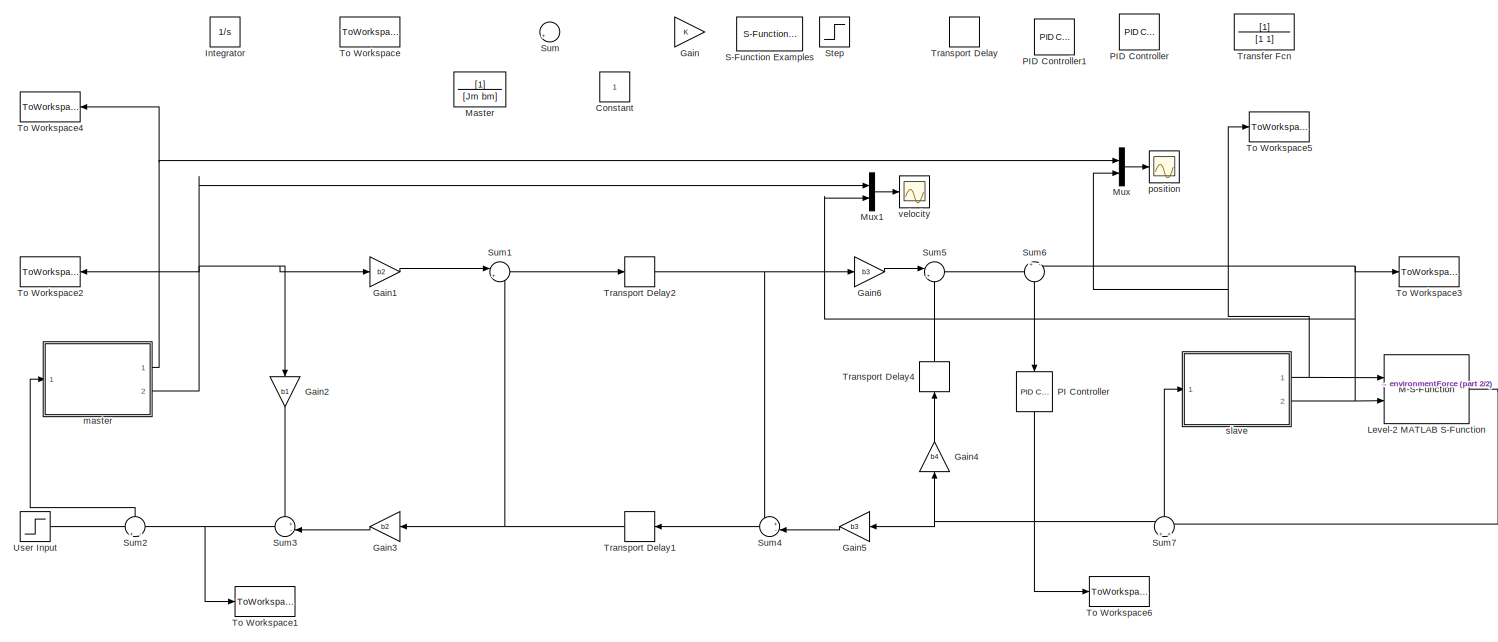
[diagram: root canvas - part 1/2, most of the canvas]
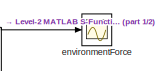
[diagram: root canvas - part 2/2, middle right region]
MODEL slx_5fdbe1e7e494
KIND model
CONFIG AbsTol = auto
CONFIG FixedStep = auto
CONFIG MaxStep = auto
CONFIG MinStep = auto
CONFIG RelTol = 1e-3
CONFIG SampleTimeConstraint = Unconstrained
CONFIG Solver = VariableStepAuto
CONFIG SolverMode = Auto
CONFIG SolverName = VariableStepAuto
CONFIG StartTime = 0.0
CONFIG StopTime = 10.0
BLOCK [Constant] Constant
BLOCK [Gain] Gain
  OutDataTypeStr = Inherit: Inherit via internal rule
  ParamDataTypeStr = Inherit: Inherit via internal rule
  SaturateOnIntegerOverflow = off
BLOCK [Gain] Gain1
  Gain = b2
  OutDataTypeStr = Inherit: Inherit via internal rule
  ParamDataTypeStr = Inherit: Inherit via internal rule
  SaturateOnIntegerOverflow = off
BLOCK [Gain] Gain2
  Gain = b1
  OutDataTypeStr = Inherit: Inherit via internal rule
  ParamDataTypeStr = Inherit: Inherit via internal rule
  SaturateOnIntegerOverflow = off
BLOCK [Gain] Gain3
  Gain = b2
  OutDataTypeStr = Inherit: Inherit via internal rule
  ParamDataTypeStr = Inherit: Inherit via internal rule
  SaturateOnIntegerOverflow = off
BLOCK [Gain] Gain4
  Gain = b4
  OutDataTypeStr = Inherit: Inherit via internal rule
  ParamDataTypeStr = Inherit: Inherit via internal rule
  SaturateOnIntegerOverflow = off
BLOCK [Gain] Gain5
  Gain = b3
  OutDataTypeStr = Inherit: Inherit via internal rule
  ParamDataTypeStr = Inherit: Inherit via internal rule
  SaturateOnIntegerOverflow = off
BLOCK [Gain] Gain6
  Gain = b3
  OutDataTypeStr = Inherit: Inherit via internal rule
  ParamDataTypeStr = Inherit: Inherit via internal rule
  SaturateOnIntegerOverflow = off
BLOCK [Integrator] Integrator
  Ports = [1, 1]
BLOCK [M-S-Function] Level-2 MATLAB S-Function
  FunctionName = wall
  Parameters = Kwall, bwall, xwall
  Ports = [2, 1]
BLOCK [TransferFcn] Master
  Denominator = [Jm bm]
BLOCK [Mux] Mux
  DisplayOption = bar
  Inputs = 2
  Ports = [2, 1]
BLOCK [Mux] Mux1
  DisplayOption = bar
  Inputs = 2
  Ports = [2, 1]
BLOCK [Reference] PI Controller  REF=simulink/Continuous/PID Controller
  Ports = [1, 1]
  SourceBlock = simulink/Continuous/PID Controller
  SourceType = PID 1dof
BLOCK [Reference] PID Controller  REF=simulink/Continuous/PID Controller
  Ports = [1, 1]
  SourceBlock = simulink/Continuous/PID Controller
  SourceType = PID 1dof
BLOCK [Reference] PID Controller1  REF=simulink/Continuous/PID Controller
  Ports = [1, 1]
  SourceBlock = simulink/Continuous/PID Controller
  SourceType = PID 1dof
BLOCK [Reference] S-Function Examples  REF=simulink/User-Defined
Functions/S-Function Examples
  Ports = []
  SourceBlock = simulink/User-Defined\nFunctions/S-Function Examples
  SourceType = S-Function Examples
BLOCK [Step] Step
  SampleTime = 0
BLOCK [Sum] Sum
  IconShape = round
  InputSameDT = off
  Inputs = |++
  OutDataTypeStr = Inherit: Inherit via internal rule
  Ports = [2, 1]
  SaturateOnIntegerOverflow = off
BLOCK [Sum] Sum1
  IconShape = round
  InputSameDT = off
  Inputs = |+-
  OutDataTypeStr = Inherit: Inherit via internal rule
  Ports = [2, 1]
  SaturateOnIntegerOverflow = off
BLOCK [Sum] Sum2
  IconShape = round
  InputSameDT = off
  Inputs = +|-
  OutDataTypeStr = Inherit: Inherit via internal rule
  Ports = [2, 1]
  SaturateOnIntegerOverflow = off
BLOCK [Sum] Sum3
  IconShape = round
  InputSameDT = off
  Inputs = +-|
  OutDataTypeStr = Inherit: Inherit via internal rule
  Ports = [2, 1]
  SaturateOnIntegerOverflow = off
BLOCK [Sum] Sum4
  IconShape = round
  InputSameDT = off
  Inputs = +-|
  OutDataTypeStr = Inherit: Inherit via internal rule
  Ports = [2, 1]
  SaturateOnIntegerOverflow = off
BLOCK [Sum] Sum5
  IconShape = round
  InputSameDT = off
  Inputs = |+-
  OutDataTypeStr = Inherit: Inherit via internal rule
  Ports = [2, 1]
  SaturateOnIntegerOverflow = off
BLOCK [Sum] Sum6
  IconShape = round
  InputSameDT = off
  Inputs = +|-
  OutDataTypeStr = Inherit: Inherit via internal rule
  Ports = [2, 1]
  SaturateOnIntegerOverflow = off
BLOCK [Sum] Sum7
  IconShape = round
  InputSameDT = off
  Inputs = +|+
  OutDataTypeStr = Inherit: Inherit via internal rule
  Ports = [2, 1]
  SaturateOnIntegerOverflow = off
BLOCK [ToWorkspace] To Workspace
  FixptAsFi = on
  MaxDataPoints = inf
  Ports = [1]
  SampleTime = -1
  Save2DSignal = 3-D array (concatenate along third dimension)
  SaveFormat = Timeseries
  VariableName = simout
BLOCK [ToWorkspace] To Workspace1
  FixptAsFi = on
  MaxDataPoints = inf
  Ports = [1]
  SampleTime = -1
  Save2DSignal = 3-D array (concatenate along third dimension)
  SaveFormat = Timeseries
  VariableName = mas_force
BLOCK [ToWorkspace] To Workspace2
  FixptAsFi = on
  MaxDataPoints = inf
  Ports = [1]
  SampleTime = -1
  Save2DSignal = 3-D array (concatenate along third dimension)
  SaveFormat = Timeseries
  VariableName = xdot_m
BLOCK [ToWorkspace] To Workspace3
  FixptAsFi = on
  MaxDataPoints = inf
  Ports = [1]
  SampleTime = -1
  Save2DSignal = 3-D array (concatenate along third dimension)
  SaveFormat = Timeseries
  VariableName = xdot_s
BLOCK [ToWorkspace] To Workspace4
  FixptAsFi = on
  MaxDataPoints = inf
  Ports = [1]
  SampleTime = -1
  Save2DSignal = 3-D array (concatenate along third dimension)
  SaveFormat = Timeseries
  VariableName = x_m
BLOCK [ToWorkspace] To Workspace5
  FixptAsFi = on
  MaxDataPoints = inf
  Ports = [1]
  SampleTime = -1
  Save2DSignal = 3-D array (concatenate along third dimension)
  SaveFormat = Timeseries
  VariableName = x_s
BLOCK [ToWorkspace] To Workspace6
  FixptAsFi = on
  MaxDataPoints = inf
  Ports = [1]
  SampleTime = -1
  Save2DSignal = 3-D array (concatenate along third dimension)
  SaveFormat = Timeseries
  VariableName = sla_force
BLOCK [TransferFcn] Transfer Fcn
  Denominator = [1 1]
BLOCK [TransportDelay] Transport Delay
  Ports = [1, 1]
BLOCK [TransportDelay] Transport Delay1
  DelayTime = Td
  Ports = [1, 1]
BLOCK [TransportDelay] Transport Delay2
  DelayTime = Td
  Ports = [1, 1]
BLOCK [TransportDelay] Transport Delay4
  DelayTime = 0.001
  Ports = [1, 1]
BLOCK [Step] User Input
  SampleTime = 0
BLOCK [Scope] environmentForce
  Ports = [1]
  ScopeSpecificationString = Simulink.scopes.TimeScopeBlockCfg('CurrentConfiguration', extmgr.ConfigurationSet(extmgr.Configuration('Core','General UI',true),extmgr.Configuration('Core','Source UI',true),extmgr.Configuration('Sources','WiredSimulink',true,'DataLoggingVariableName','ScopeData2'),extmgr.Configuration('Visuals','Time Domain',true,'SerializedDisplays',{struct('MinYLimReal','-32.90876','MaxYLimReal','3.65653','YLa...<+1415ch>
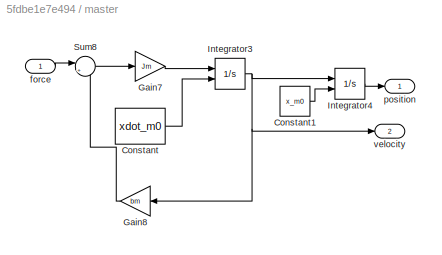
BLOCK [SubSystem] master 
  Ports = [1, 2]
  RequestExecContextInheritance = off
  Variant = off
BLOCK [Constant] master /Constant
  Value = xdot_m0
BLOCK [Constant] master /Constant1
  Value = x_m0
BLOCK [Gain] master /Gain7
  Gain = Jm
  OutDataTypeStr = Inherit: Inherit via internal rule
  ParamDataTypeStr = Inherit: Inherit via internal rule
  SaturateOnIntegerOverflow = off
BLOCK [Gain] master /Gain8
  Gain = bm
  OutDataTypeStr = Inherit: Inherit via internal rule
  ParamDataTypeStr = Inherit: Inherit via internal rule
  SaturateOnIntegerOverflow = off
BLOCK [Integrator] master /Integrator3
  InitialConditionSource = external
  Ports = [2, 1]
BLOCK [Integrator] master /Integrator4
  InitialConditionSource = external
  Ports = [2, 1]
BLOCK [Sum] master /Sum8
  IconShape = round
  InputSameDT = off
  Inputs = |+-
  OutDataTypeStr = Inherit: Inherit via internal rule
  Ports = [2, 1]
  SaturateOnIntegerOverflow = off
BLOCK [Inport] master /force
  IconDisplay = Port number
BLOCK [Outport] master /position 
  IconDisplay = Port number
BLOCK [Outport] master /velocity
  IconDisplay = Port number
  Port = 2
BLOCK [Scope] position
  Ports = [1]
  ScopeSpecificationString = Simulink.scopes.TimeScopeBlockCfg('CurrentConfiguration', extmgr.ConfigurationSet(extmgr.Configuration('Core','General UI',true),extmgr.Configuration('Core','Source UI',true),extmgr.Configuration('Sources','WiredSimulink',true),extmgr.Configuration('Visuals','Time Domain',true,'SerializedDisplays',{struct('MinYLimReal','-0.02806','MaxYLimReal','0.2525','YLabelReal','','MinYLimMag','0.00000','MaxYL...<+1363ch>
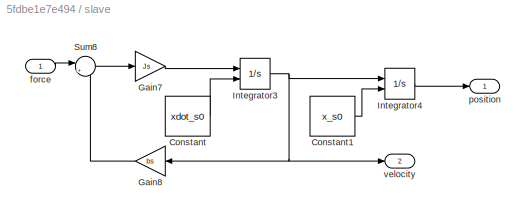
BLOCK [SubSystem] slave 
  Ports = [1, 2]
  RequestExecContextInheritance = off
  Variant = off
BLOCK [Constant] slave /Constant
  Value = xdot_s0
BLOCK [Constant] slave /Constant1
  Value = x_s0
BLOCK [Gain] slave /Gain7
  Gain = Js
  OutDataTypeStr = Inherit: Inherit via internal rule
  ParamDataTypeStr = Inherit: Inherit via internal rule
  SaturateOnIntegerOverflow = off
BLOCK [Gain] slave /Gain8
  Gain = bs
  OutDataTypeStr = Inherit: Inherit via internal rule
  ParamDataTypeStr = Inherit: Inherit via internal rule
  SaturateOnIntegerOverflow = off
BLOCK [Integrator] slave /Integrator3
  InitialConditionSource = external
  Ports = [2, 1]
BLOCK [Integrator] slave /Integrator4
  InitialConditionSource = external
  Ports = [2, 1]
BLOCK [Sum] slave /Sum8
  IconShape = round
  InputSameDT = off
  Inputs = |+-
  OutDataTypeStr = Inherit: Inherit via internal rule
  Ports = [2, 1]
  SaturateOnIntegerOverflow = off
BLOCK [Inport] slave /force
  IconDisplay = Port number
BLOCK [Outport] slave /position 
  IconDisplay = Port number
BLOCK [Outport] slave /velocity
  IconDisplay = Port number
  Port = 2
BLOCK [Scope] velocity
  Ports = [1]
  ScopeSpecificationString = Simulink.scopes.TimeScopeBlockCfg('CurrentConfiguration', extmgr.ConfigurationSet(extmgr.Configuration('Core','General UI',true),extmgr.Configuration('Core','Source UI',true),extmgr.Configuration('Sources','WiredSimulink',true,'DataLoggingVariableName','ScopeData1'),extmgr.Configuration('Visuals','Time Domain',true,'SerializedDisplays',{struct('MinYLimReal','-0.35371','MaxYLimReal','0.5311','YLabe...<+1402ch>
LINE Gain1:1 -> Sum1:1
LINE Gain2:1 -> Sum3:1
LINE Gain3:1 -> Sum3:2
LINE Gain4:1 -> Transport Delay4:1
LINE Gain5:1 -> Sum4:2
LINE Gain6:1 -> Sum5:1
NET Level-2 MATLAB S-Function:1 -> Sum7:2, environmentForce:1
LINE Mux1:1 -> velocity:1
LINE Mux:1 -> position:1
NET PI Controller:1 -> Gain4:1, Gain5:1, Sum7:1, To Workspace6:1
LINE Sum1:1 -> Transport Delay2:1
LINE Sum2:1 -> master :1
NET Sum3:1 -> Sum2:2, To Workspace1:1
LINE Sum4:1 -> Transport Delay1:1
LINE Sum5:1 -> Sum6:1
LINE Sum6:1 -> PI Controller:1
LINE Sum7:1 -> slave :1
NET Transport Delay1:1 -> Gain3:1, Sum1:2
NET Transport Delay2:1 -> Gain6:1, Sum4:1
LINE Transport Delay4:1 -> Sum5:2
LINE User Input:1 -> Sum2:1
LINE master /Constant1:1 -> master /Integrator4:2
LINE master /Constant:1 -> master /Integrator3:2
LINE master /Gain7:1 -> master /Integrator3:1
LINE master /Gain8:1 -> master /Sum8:2
NET master /Integrator3:1 -> master /Gain8:1, master /Integrator4:1, master /velocity:1
LINE master /Integrator4:1 -> master /position :1
LINE master /Sum8:1 -> master /Gain7:1
LINE master /force:1 -> master /Sum8:1
NET master :1 -> Mux:1, To Workspace4:1
NET master :2 -> Gain1:1, Gain2:1, Mux1:1, To Workspace2:1
LINE slave /Constant1:1 -> slave /Integrator4:2
LINE slave /Constant:1 -> slave /Integrator3:2
LINE slave /Gain7:1 -> slave /Integrator3:1
LINE slave /Gain8:1 -> slave /Sum8:2
NET slave /Integrator3:1 -> slave /Gain8:1, slave /Integrator4:1, slave /velocity:1
LINE slave /Integrator4:1 -> slave /position :1
LINE slave /Sum8:1 -> slave /Gain7:1
LINE slave /force:1 -> slave /Sum8:1
NET slave :1 -> Level-2 MATLAB S-Function:1, Mux:2, To Workspace5:1
NET slave :2 -> Level-2 MATLAB S-Function:2, Mux1:2, Sum6:2, To Workspace3:1
note: NET lines group one-source signal fan-out (src -> all destinations, sorted); 1:1 wires keep LINE
